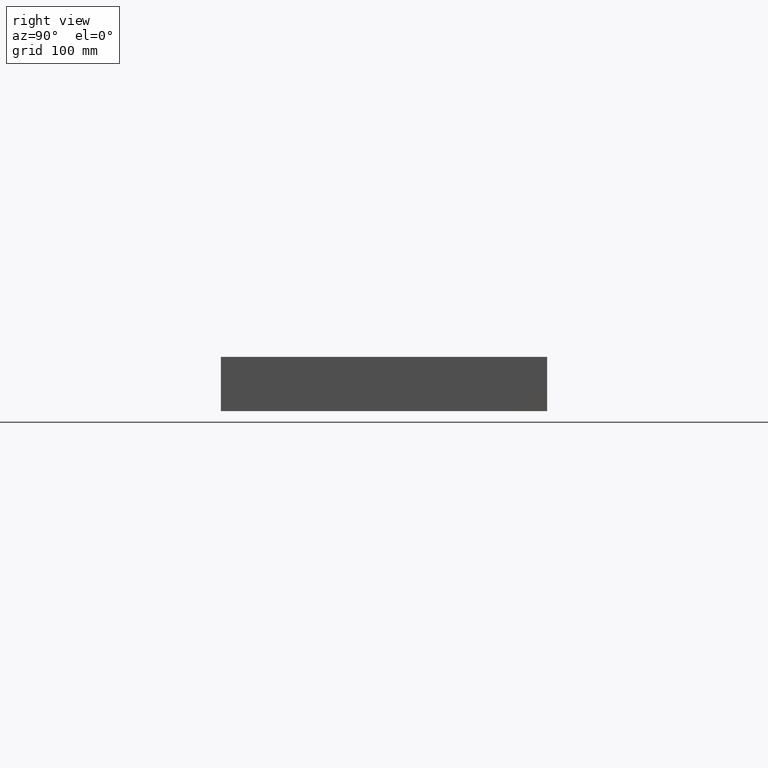
[diagram: clean part render]
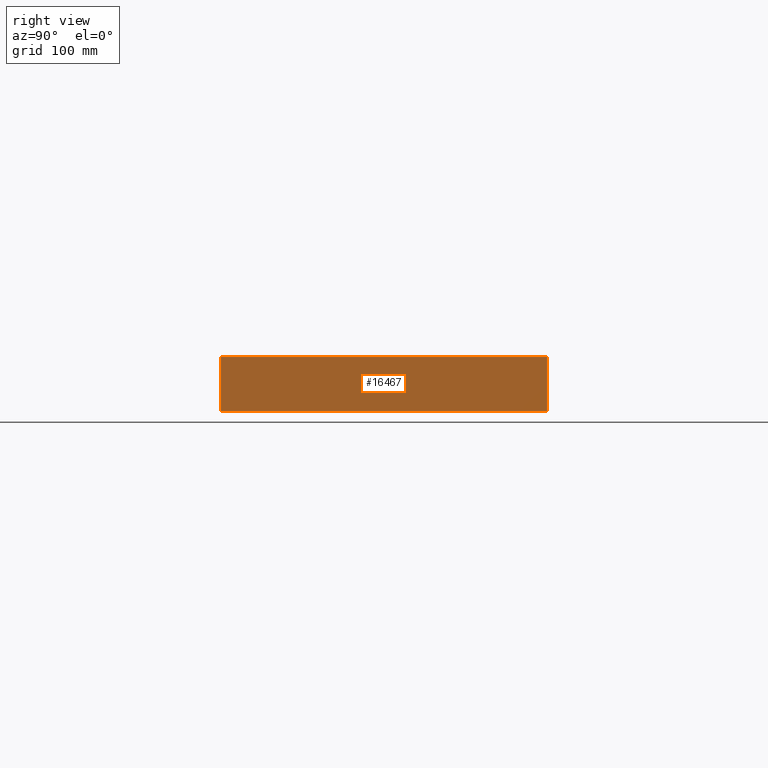
[diagram: same view with one face highlighted and labeled with its STEP entity id]
A machine part, right view. The second image highlights one B-rep face of the part: STEP entity #16467.
In plain terms, the highlighted planar face has unit normal (-1, 0, 0).
Its self-contained STEP definition (entity closure, byte-faithful):
#1364 = VERTEX_POINT ( 'NONE', #10774 ) ;
#2524 = VERTEX_POINT ( 'NONE', #15314 ) ;
#2781 = VECTOR ( 'NONE', #4994, 1000.000000000000000 ) ;
#2885 = VERTEX_POINT ( 'NONE', #14666 ) ;
#2984 = VECTOR ( 'NONE', #15131, 1000.000000000000000 ) ;
#3594 = DIRECTION ( 'NONE',  ( -0.0000000000000000000, -0.0000000000000000000, -1.000000000000000000 ) ) ;
#3701 = CARTESIAN_POINT ( 'NONE',  ( 299.9999999999999400, 150.0000000000000000, 0.0000000000000000000 ) ) ;
#4300 = CARTESIAN_POINT ( 'NONE',  ( 299.9999999999999400, 150.0000000000000000, 50.00000000000000000 ) ) ;
#4994 = DIRECTION ( 'NONE',  ( -0.0000000000000000000, 1.000000000000000000, -0.0000000000000000000 ) ) ;
#5013 = LINE ( 'NONE', #3701, #2781 ) ;
#5084 = CARTESIAN_POINT ( 'NONE',  ( 299.9999999999999400, 150.0000000000000000, 50.00000000000000000 ) ) ;
#5171 = CARTESIAN_POINT ( 'NONE',  ( 299.9999999999999400, -150.0000000000000000, 0.0000000000000000000 ) ) ;
#5844 = ORIENTED_EDGE ( 'NONE', *, *, #5867, .T. ) ;
#5867 = EDGE_CURVE ( 'NONE', #5958, #2885, #5013, .T. ) ;
#5958 = VERTEX_POINT ( 'NONE', #5171 ) ;
#6402 = ORIENTED_EDGE ( 'NONE', *, *, #6473, .F. ) ;
#6473 = EDGE_CURVE ( 'NONE', #1364, #2885, #9748, .T. ) ;
#6602 = ORIENTED_EDGE ( 'NONE', *, *, #6693, .F. ) ;
#6693 = EDGE_CURVE ( 'NONE', #2524, #1364, #12890, .T. ) ;
#6906 = DIRECTION ( 'NONE',  ( -1.000000000000000000, 0.0000000000000000000, 0.0000000000000000000 ) ) ;
#6979 = EDGE_CURVE ( 'NONE', #2524, #5958, #15962, .T. ) ;
#7158 = ORIENTED_EDGE ( 'NONE', *, *, #6979, .T. ) ;
#7181 = EDGE_LOOP ( 'NONE', ( #5844, #6402, #6602, #7158 ) ) ;
#9355 = VECTOR ( 'NONE', #3594, 1000.000000000000000 ) ;
#9561 = VECTOR ( 'NONE', #15615, 1000.000000000000000 ) ;
#9748 = LINE ( 'NONE', #5084, #2984 ) ;
#10774 = CARTESIAN_POINT ( 'NONE',  ( 299.9999999999999400, 150.0000000000000000, 50.00000000000000000 ) ) ;
#11196 = CARTESIAN_POINT ( 'NONE',  ( 299.9999999999999400, -150.0000000000000000, 50.00000000000000000 ) ) ;
#11885 = PLANE ( 'NONE',  #13214 ) ;
#12890 = LINE ( 'NONE', #4300, #9561 ) ;
#13214 = AXIS2_PLACEMENT_3D ( 'NONE', #14428, #6906, #15640 ) ;
#14428 = CARTESIAN_POINT ( 'NONE',  ( 299.9999999999999400, 150.0000000000000000, 50.00000000000000000 ) ) ;
#14666 = CARTESIAN_POINT ( 'NONE',  ( 299.9999999999999400, 150.0000000000000000, 0.0000000000000000000 ) ) ;
#15131 = DIRECTION ( 'NONE',  ( -0.0000000000000000000, -0.0000000000000000000, -1.000000000000000000 ) ) ;
#15188 = FACE_OUTER_BOUND ( 'NONE', #7181, .T. ) ;
#15314 = CARTESIAN_POINT ( 'NONE',  ( 299.9999999999999400, -150.0000000000000000, 50.00000000000000000 ) ) ;
#15615 = DIRECTION ( 'NONE',  ( -0.0000000000000000000, 1.000000000000000000, -0.0000000000000000000 ) ) ;
#15640 = DIRECTION ( 'NONE',  ( 0.0000000000000000000, 0.0000000000000000000, 1.000000000000000000 ) ) ;
#15962 = LINE ( 'NONE', #11196, #9355 ) ;
#16467 = ADVANCED_FACE ( 'NONE', ( #15188 ), #11885, .F. ) ;